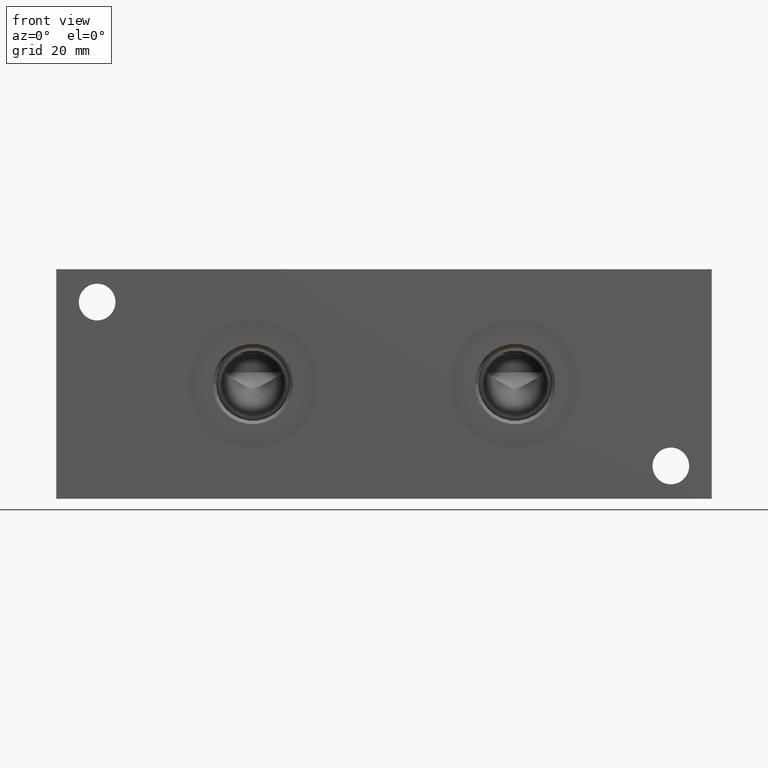
[diagram: clean part render]
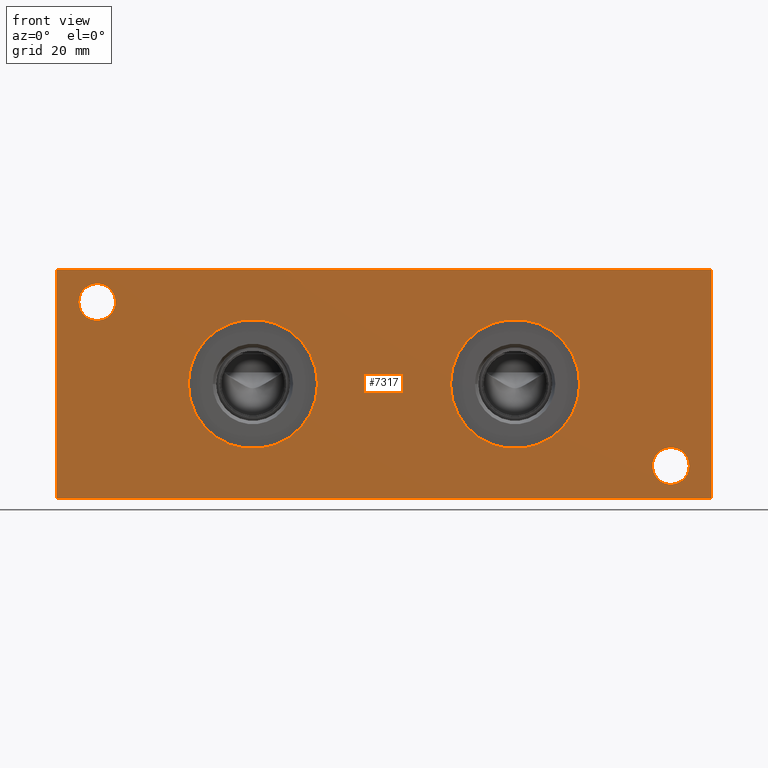
[diagram: same view with one face highlighted and labeled with its STEP entity id]
A machine part, front view. The second image highlights one B-rep face of the part: STEP entity #7317.
In plain terms, the highlighted planar face has unit normal (0, -1, 0).
Its self-contained STEP definition (entity closure, byte-faithful):
#79=CIRCLE('',#7533,12.5095);
#80=CIRCLE('',#7534,12.5095);
#110=CIRCLE('',#7586,3.5687);
#111=CIRCLE('',#7587,3.5687);
#113=CIRCLE('',#7595,3.5687);
#114=CIRCLE('',#7596,3.5687);
#131=CIRCLE('',#7635,12.5095);
#132=CIRCLE('',#7636,12.5095);
#197=FACE_BOUND('',#1382,.T.);
#198=FACE_BOUND('',#1383,.T.);
#199=FACE_BOUND('',#1384,.T.);
#200=FACE_BOUND('',#1385,.T.);
#965=FACE_OUTER_BOUND('',#1381,.T.);
#1381=EDGE_LOOP('',(#6413,#6414,#6415,#6416));
#1382=EDGE_LOOP('',(#6417,#6418));
#1383=EDGE_LOOP('',(#6419,#6420));
#1384=EDGE_LOOP('',(#6421,#6422));
#1385=EDGE_LOOP('',(#6423,#6424));
#1625=LINE('',#11517,#2281);
#2039=LINE('',#12795,#2695);
#2044=LINE('',#12804,#2700);
#2045=LINE('',#12806,#2701);
#2281=VECTOR('',#8016,10.);
#2695=VECTOR('',#9010,10.);
#2700=VECTOR('',#9019,10.);
#2701=VECTOR('',#9022,10.);
#3016=VERTEX_POINT('',#11515);
#3017=VERTEX_POINT('',#11516);
#3290=VERTEX_POINT('',#12447);
#3291=VERTEX_POINT('',#12448);
#3321=VERTEX_POINT('',#12567);
#3322=VERTEX_POINT('',#12568);
#3326=VERTEX_POINT('',#12583);
#3327=VERTEX_POINT('',#12584);
#3352=VERTEX_POINT('',#12717);
#3353=VERTEX_POINT('',#12718);
#3377=VERTEX_POINT('',#12793);
#3379=VERTEX_POINT('',#12802);
#3851=EDGE_CURVE('',#3016,#3017,#1625,.T.);
#4256=EDGE_CURVE('',#3290,#3291,#79,.T.);
#4257=EDGE_CURVE('',#3291,#3290,#80,.T.);
#4303=EDGE_CURVE('',#3321,#3322,#110,.T.);
#4304=EDGE_CURVE('',#3322,#3321,#111,.T.);
#4312=EDGE_CURVE('',#3326,#3327,#113,.T.);
#4313=EDGE_CURVE('',#3327,#3326,#114,.T.);
#4354=EDGE_CURVE('',#3352,#3353,#131,.T.);
#4355=EDGE_CURVE('',#3353,#3352,#132,.T.);
#4391=EDGE_CURVE('',#3377,#3016,#2039,.T.);
#4396=EDGE_CURVE('',#3379,#3017,#2044,.T.);
#4397=EDGE_CURVE('',#3377,#3379,#2045,.T.);
#6413=ORIENTED_EDGE('',*,*,#4397,.T.);
#6414=ORIENTED_EDGE('',*,*,#4396,.T.);
#6415=ORIENTED_EDGE('',*,*,#3851,.F.);
#6416=ORIENTED_EDGE('',*,*,#4391,.F.);
#6417=ORIENTED_EDGE('',*,*,#4256,.T.);
#6418=ORIENTED_EDGE('',*,*,#4257,.T.);
#6419=ORIENTED_EDGE('',*,*,#4303,.T.);
#6420=ORIENTED_EDGE('',*,*,#4304,.T.);
#6421=ORIENTED_EDGE('',*,*,#4312,.T.);
#6422=ORIENTED_EDGE('',*,*,#4313,.T.);
#6423=ORIENTED_EDGE('',*,*,#4354,.T.);
#6424=ORIENTED_EDGE('',*,*,#4355,.T.);
#6635=PLANE('',#7676);
#7317=ADVANCED_FACE('',(#965,#197,#198,#199,#200),#6635,.T.);
#7533=AXIS2_PLACEMENT_3D('',#12449,#8695,#8696);
#7534=AXIS2_PLACEMENT_3D('',#12450,#8697,#8698);
#7586=AXIS2_PLACEMENT_3D('',#12569,#8811,#8812);
#7587=AXIS2_PLACEMENT_3D('',#12570,#8813,#8814);
#7595=AXIS2_PLACEMENT_3D('',#12585,#8831,#8832);
#7596=AXIS2_PLACEMENT_3D('',#12586,#8833,#8834);
#7635=AXIS2_PLACEMENT_3D('',#12719,#8919,#8920);
#7636=AXIS2_PLACEMENT_3D('',#12720,#8921,#8922);
#7676=AXIS2_PLACEMENT_3D('',#12805,#9020,#9021);
#8016=DIRECTION('',(1.,0.,0.));
#8695=DIRECTION('center_axis',(0.,1.,0.));
#8696=DIRECTION('ref_axis',(1.,0.,0.));
#8697=DIRECTION('center_axis',(0.,1.,0.));
#8698=DIRECTION('ref_axis',(1.,0.,0.));
#8811=DIRECTION('center_axis',(0.,1.,0.));
#8812=DIRECTION('ref_axis',(1.,0.,0.));
#8813=DIRECTION('center_axis',(0.,1.,0.));
#8814=DIRECTION('ref_axis',(1.,0.,0.));
#8831=DIRECTION('center_axis',(0.,1.,0.));
#8832=DIRECTION('ref_axis',(1.,0.,0.));
#8833=DIRECTION('center_axis',(0.,1.,0.));
#8834=DIRECTION('ref_axis',(1.,0.,0.));
#8919=DIRECTION('center_axis',(0.,1.,0.));
#8920=DIRECTION('ref_axis',(1.,0.,0.));
#8921=DIRECTION('center_axis',(0.,1.,0.));
#8922=DIRECTION('ref_axis',(1.,0.,0.));
#9010=DIRECTION('',(0.,0.,1.));
#9019=DIRECTION('',(0.,0.,1.));
#9020=DIRECTION('center_axis',(0.,-1.,0.));
#9021=DIRECTION('ref_axis',(1.,0.,0.));
#9022=DIRECTION('',(1.,0.,0.));
#11515=CARTESIAN_POINT('',(0.,0.,44.45));
#11516=CARTESIAN_POINT('',(127.,0.,44.45));
#11517=CARTESIAN_POINT('',(0.,0.,44.45));
#12447=CARTESIAN_POINT('',(101.4095,0.,22.225));
#12448=CARTESIAN_POINT('',(76.3905,0.,22.225));
#12449=CARTESIAN_POINT('Origin',(88.9,0.,22.225));
#12450=CARTESIAN_POINT('Origin',(88.9,0.,22.225));
#12567=CARTESIAN_POINT('',(11.4935,0.,38.1));
#12568=CARTESIAN_POINT('',(4.3561,-1.77635683940025E-14,38.1));
#12569=CARTESIAN_POINT('Origin',(7.9248,0.,38.1));
#12570=CARTESIAN_POINT('Origin',(7.9248,0.,38.1));
#12583=CARTESIAN_POINT('',(122.6439,0.,6.35));
#12584=CARTESIAN_POINT('',(115.5065,-1.77635683940025E-14,6.35));
#12585=CARTESIAN_POINT('Origin',(119.0752,0.,6.35));
#12586=CARTESIAN_POINT('Origin',(119.0752,0.,6.35));
#12717=CARTESIAN_POINT('',(50.6095,0.,22.225));
#12718=CARTESIAN_POINT('',(25.5905,0.,22.225));
#12719=CARTESIAN_POINT('Origin',(38.1,0.,22.225));
#12720=CARTESIAN_POINT('Origin',(38.1,0.,22.225));
#12793=CARTESIAN_POINT('',(0.,0.,0.));
#12795=CARTESIAN_POINT('',(0.,0.,0.));
#12802=CARTESIAN_POINT('',(127.,0.,0.));
#12804=CARTESIAN_POINT('',(127.,0.,0.));
#12805=CARTESIAN_POINT('Origin',(0.,0.,0.));
#12806=CARTESIAN_POINT('',(0.,0.,0.));